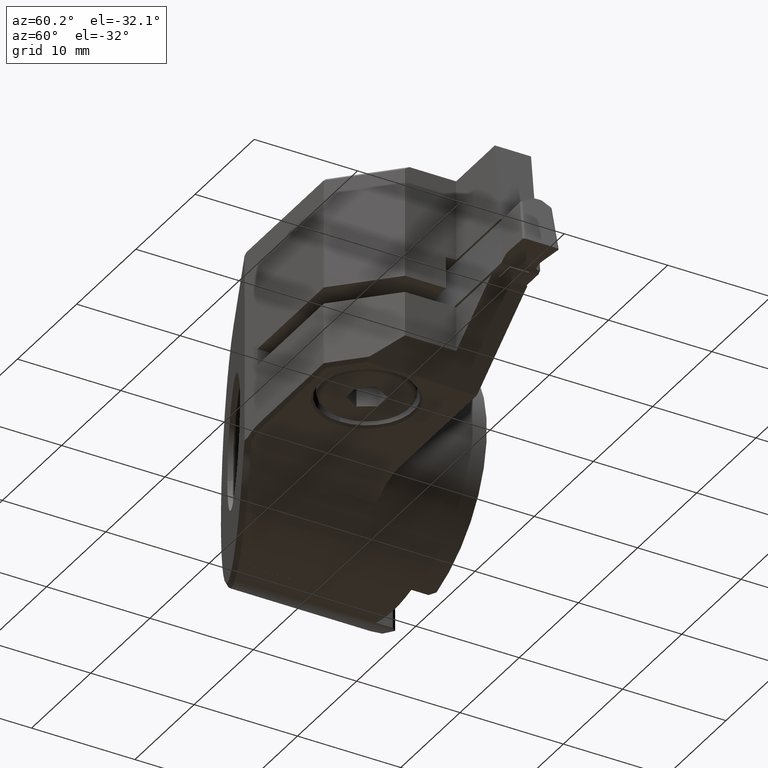
[diagram: clean part render]
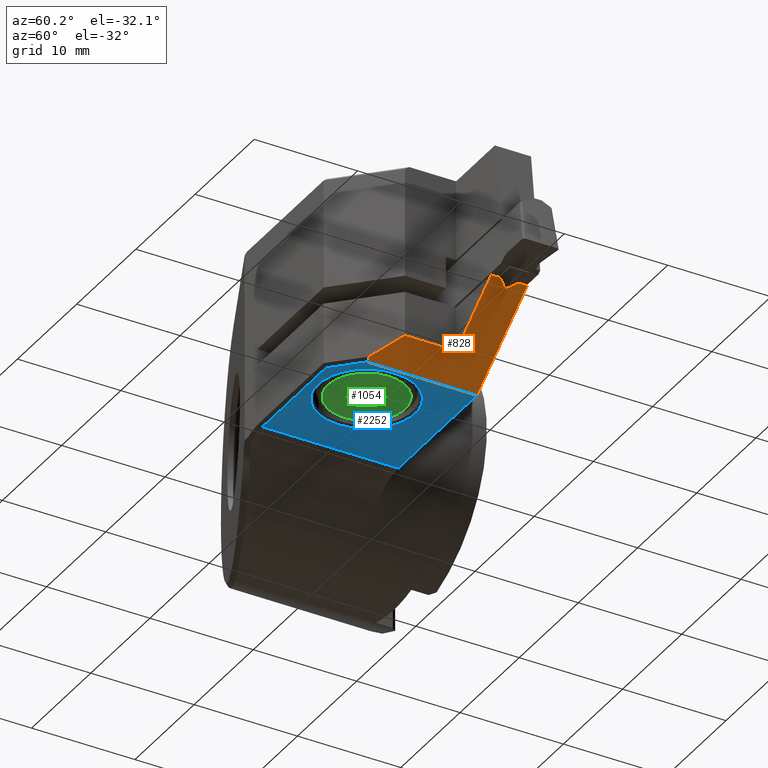
[diagram: same view with three faces highlighted in distinct colors, each labeled with its STEP entity id]
A machine part, auxiliary view with three faces highlighted in distinct colors.
Their STEP definitions:

[orange] entity #828 — the highlighted planar face has unit normal (0.5878, 0, -0.809).
#828=ADVANCED_FACE('NONE',(#2376),#2377,.T.);
#904=VERTEX_POINT('NONE',#2459);
#1000=VERTEX_POINT('NONE',#2563);
#1028=VERTEX_POINT('NONE',#2596);
#1036=VERTEX_POINT('NONE',#2604);
#1182=VERTEX_POINT('NONE',#2767);
#1300=VERTEX_POINT('NONE',#2892);
#1302=EDGE_CURVE('NONE',#1804,#1028,#2894,.T.);
#1366=EDGE_CURVE('NONE',#1182,#1036,#2966,.T.);
#1384=EDGE_CURVE('NONE',#1300,#1000,#2986,.F.);
#1472=EDGE_CURVE('NONE',#2098,#1028,#3086,.F.);
#1550=EDGE_CURVE('NONE',#1182,#1804,#3173,.T.);
#1562=EDGE_CURVE('NONE',#2274,#904,#3186,.T.);
#1692=EDGE_CURVE('NONE',#2098,#2274,#3322,.T.);
#1804=VERTEX_POINT('NONE',#3445);
#1892=VERTEX_POINT('NONE',#3541);
#2098=VERTEX_POINT('NONE',#3775);
#2154=EDGE_CURVE('NONE',#1036,#1300,#3834,.F.);
#2164=EDGE_CURVE('NONE',#1000,#1892,#3845,.T.);
#2194=EDGE_CURVE('NONE',#1892,#904,#3878,.F.);
#2274=VERTEX_POINT('NONE',#3968);
#2376=FACE_OUTER_BOUND('',#4094,.T.);
#2377=PLANE('',#4095);
#2459=CARTESIAN_POINT('',(34.1335679069214,-9.63397459621556,-0.5));
#2563=CARTESIAN_POINT('',(25.6,-8.75,-6.7));
#2596=CARTESIAN_POINT('',(34.1335679069214,-12.25,-0.5));
#2604=CARTESIAN_POINT('',(26.0129145761414,-19.3870854238586,-6.39999999999998));
#2767=CARTESIAN_POINT('',(28.2,-17.2,-4.81098942718608));
#2892=CARTESIAN_POINT('',(25.6,-19.375735931288,-6.7));
#2894=LINE('',#5078,#5079);
#2966=LINE('',#5185,#5186);
#2986=LINE('',#5211,#5212);
#3086=LINE('',#5345,#5346);
#3173=LINE('',#5529,#5530);
#3186=LINE('',#5544,#5545);
#3322=LINE('',#5801,#5802);
#3445=CARTESIAN_POINT('',(28.2,-12.25,-4.81098942718608));
#3541=CARTESIAN_POINT('',(34.1335679069214,-8.75,-0.5));
#3775=CARTESIAN_POINT('',(34.1335679069214,-11.3660254037844,-0.5));
#3834=LINE('',#6755,#6756);
#3845=LINE('',#6773,#6774);
#3878=LINE('',#6840,#6841);
#3968=CARTESIAN_POINT('',(33.4453769466858,-10.5,-1.0));
#4094=EDGE_LOOP('',(#7191,#7192,#7193,#7194,#7195,#7196,#7197,#7198,#7199,#7200));
#4095=AXIS2_PLACEMENT_3D('',#7201,#7202,#7203);
#5078=CARTESIAN_POINT('',(32.1907111622527,-12.25,-1.91156805082387));
#5079=VECTOR('',#7736,1.0);
#5185=CARTESIAN_POINT('',(29.6230449243907,-15.7769550756093,-3.77708677035407));
#5186=VECTOR('',#7827,1.0);
#5211=CARTESIAN_POINT('',(25.6,-11.1,-6.7));
#5212=VECTOR('',#7838,1.0);
#5345=CARTESIAN_POINT('',(34.1335679069214,-22.2,-0.5));
#5346=VECTOR('',#7950,1.0);
#5529=CARTESIAN_POINT('',(28.2,-22.725,-4.81098942718608));
#5530=VECTOR('',#8045,1.0);
#5544=CARTESIAN_POINT('',(25.2713376822733,-20.7862810811832,-6.93878715118129));
#5545=VECTOR('',#8056,1.0);
#5801=CARTESIAN_POINT('',(30.2368335565123,-6.46234149300123,-3.33114322591153));
#5802=VECTOR('',#8142,0.999999999999999);
#6755=CARTESIAN_POINT('',(33.1429410670195,-19.5830634477937,-1.21973252857222));
#6756=VECTOR('',#8722,1.0);
#6773=CARTESIAN_POINT('',(25.8153109007946,-8.75,-6.54356747382955));
#6774=VECTOR('',#8736,1.0);
#6840=CARTESIAN_POINT('',(34.1335679069214,-22.2,-0.5));
#6841=VECTOR('',#8769,1.0);
#7191=ORIENTED_EDGE('',*,*,#1366,.T.);
#7192=ORIENTED_EDGE('',*,*,#2154,.T.);
#7193=ORIENTED_EDGE('',*,*,#1384,.T.);
#7194=ORIENTED_EDGE('',*,*,#2164,.T.);
#7195=ORIENTED_EDGE('',*,*,#2194,.T.);
#7196=ORIENTED_EDGE('',*,*,#1562,.F.);
#7197=ORIENTED_EDGE('',*,*,#1692,.F.);
#7198=ORIENTED_EDGE('',*,*,#1472,.T.);
#7199=ORIENTED_EDGE('',*,*,#1302,.F.);
#7200=ORIENTED_EDGE('',*,*,#1550,.F.);
#7201=CARTESIAN_POINT('',(39.6,-22.2,3.47159539207493));
#7202=DIRECTION('',(0.587785252292469,0.0,-0.809016994374951));
#7203=DIRECTION('',(0.0,1.0,0.0));
#7736=DIRECTION('',(0.809016994374951,1.69086840073063E-016,0.587785252292469));
#7827=DIRECTION('',(-0.628960169645096,-0.628960169645095,-0.456966311668623));
#7838=DIRECTION('',(2.45082762162414E-032,-1.0,1.78063049592015E-032));
#7950=DIRECTION('',(0.0,1.0,0.0));
#8045=DIRECTION('',(0.0,1.0,0.0));
#8056=DIRECTION('',(0.566915270681804,0.713411036430494,0.411888053925997));
#8142=DIRECTION('',(-0.566915270681804,0.713411036430494,-0.411888053925997));
#8722=DIRECTION('',(0.80881704761348,-0.0222313853839278,0.587639982466923));
#8736=DIRECTION('',(0.809016994374951,0.0,0.587785252292469));
#8769=DIRECTION('',(0.0,1.0,0.0));

[blue] entity #2252 — the highlighted planar face has unit normal (0, -0, -1).
#860=EDGE_CURVE('NONE',#2126,#2094,#2410,.F.);
#942=EDGE_CURVE('NONE',#1000,#1420,#2498,.T.);
#1000=VERTEX_POINT('NONE',#2563);
#1166=VERTEX_POINT('NONE',#2748);
#1174=VERTEX_POINT('NONE',#2758);
#1300=VERTEX_POINT('NONE',#2892);
#1338=EDGE_CURVE('NONE',#1174,#1166,#2934,.F.);
#1384=EDGE_CURVE('NONE',#1300,#1000,#2986,.F.);
#1420=VERTEX_POINT('NONE',#3027);
#1576=EDGE_CURVE('NONE',#1300,#2126,#3200,.F.);
#1666=EDGE_CURVE('NONE',#1166,#1174,#3295,.T.);
#2094=VERTEX_POINT('NONE',#3771);
#2126=VERTEX_POINT('NONE',#3805);
#2146=EDGE_CURVE('NONE',#2094,#1420,#3826,.F.);
#2252=ADVANCED_FACE('NONE',(#3942,#3943),#3944,.T.);
#2410=LINE('',#4195,#4196);
#2498=LINE('',#4387,#4388);
#2563=CARTESIAN_POINT('',(25.6,-8.75,-6.7));
#2748=CARTESIAN_POINT('',(25.2,-16.5,-6.7));
#2758=CARTESIAN_POINT('',(15.8,-16.5,-6.7));
#2892=CARTESIAN_POINT('',(25.6,-19.375735931288,-6.7));
#2934=CIRCLE('',#5143,4.70000000000001);
#2986=LINE('',#5211,#5212);
#3027=CARTESIAN_POINT('',(12.333288288206,-8.75,-6.7));
#3200=LINE('',#5568,#5569);
#3295=CIRCLE('',#5762,4.70000000000001);
#3771=CARTESIAN_POINT('',(12.333288288206,-21.9029999999036,-6.7));
#3805=CARTESIAN_POINT('',(23.0727359313844,-21.9029999999036,-6.7));
#3826=LINE('',#6740,#6741);
#3942=FACE_OUTER_BOUND('',#6970,.T.);
#3943=FACE_BOUND('',#6971,.T.);
#3944=PLANE('',#6972);
#4195=CARTESIAN_POINT('',(22.6,-21.9029999999036,-6.7));
#4196=VECTOR('',#7222,1.0);
#4387=CARTESIAN_POINT('',(4.75,-8.75,-6.7));
#4388=VECTOR('',#7296,1.0);
#5143=AXIS2_PLACEMENT_3D('',#7777,#7778,#7779);
#5211=CARTESIAN_POINT('',(25.6,-11.1,-6.7));
#5212=VECTOR('',#7838,1.0);
#5568=CARTESIAN_POINT('',(27.237867965644,-17.737867965644,-6.7));
#5569=VECTOR('',#8061,1.0);
#5762=AXIS2_PLACEMENT_3D('',#8124,#8125,#8126);
#6740=CARTESIAN_POINT('',(12.333288288206,-11.17,-6.7));
#6741=VECTOR('',#8717,1.0);
#6970=EDGE_LOOP('',(#8848,#8849,#8850,#8851,#8852));
#6971=EDGE_LOOP('',(#8853,#8854));
#6972=AXIS2_PLACEMENT_3D('',#8855,#8856,#8857);
#7222=DIRECTION('',(1.0,-1.29498993662696E-017,2.60666795216285E-048));
#7296=DIRECTION('',(-1.0,0.0,-2.37607809485609E-048));
#7777=CARTESIAN_POINT('',(20.5,-16.5,-6.7));
#7778=DIRECTION('',(2.37607809485609E-048,-1.78063049592015E-032,-1.0));
#7779=DIRECTION('',(1.0,4.2309171163886E-080,2.37607809485609E-048));
#7838=DIRECTION('',(2.45082762162414E-032,-1.0,1.78063049592015E-032));
#8061=DIRECTION('',(0.707106781186548,0.707106781186547,-1.2590958984527E-032));
#8124=CARTESIAN_POINT('',(20.5,-16.5,-6.7));
#8125=DIRECTION('',(-2.37607809485609E-048,1.78063049592015E-032,1.0));
#8126=DIRECTION('',(1.0,4.2309171163886E-080,2.37607809485609E-048));
#8717=DIRECTION('',(0.0,-1.0,0.0));
#8848=ORIENTED_EDGE('',*,*,#1384,.F.);
#8849=ORIENTED_EDGE('',*,*,#1576,.T.);
#8850=ORIENTED_EDGE('',*,*,#860,.T.);
#8851=ORIENTED_EDGE('',*,*,#2146,.T.);
#8852=ORIENTED_EDGE('',*,*,#942,.F.);
#8853=ORIENTED_EDGE('',*,*,#1666,.T.);
#8854=ORIENTED_EDGE('',*,*,#1338,.T.);
#8855=CARTESIAN_POINT('',(9.5,0.0,-6.7));
#8856=DIRECTION('',(2.37607809485609E-048,-1.78063049592015E-032,-1.0));
#8857=DIRECTION('',(1.0,1.33440267382831E-016,0.0));

[green] entity #1054 — the highlighted planar face has unit normal (0, 0, 1).
#894=EDGE_CURVE('NONE',#1438,#1506,#2448,.T.);
#960=EDGE_CURVE('NONE',#1244,#1438,#2518,.T.);
#1054=ADVANCED_FACE('NONE',(#2624,#2625),#2626,.F.);
#1226=EDGE_CURVE('NONE',#2026,#1992,#2814,.T.);
#1244=VERTEX_POINT('NONE',#2834);
#1438=VERTEX_POINT('NONE',#3048);
#1464=EDGE_CURVE('NONE',#1506,#1712,#3077,.T.);
#1506=VERTEX_POINT('NONE',#3125);
#1514=EDGE_CURVE('NONE',#2244,#2058,#3134,.T.);
#1584=EDGE_CURVE('NONE',#2058,#1244,#3208,.T.);
#1680=EDGE_CURVE('NONE',#1712,#2244,#3309,.T.);
#1712=VERTEX_POINT('NONE',#3343);
#1966=EDGE_CURVE('NONE',#1992,#2026,#3625,.T.);
#1992=VERTEX_POINT('NONE',#3652);
#2026=VERTEX_POINT('NONE',#3692);
#2058=VERTEX_POINT('NONE',#3731);
#2244=VERTEX_POINT('NONE',#3933);
#2448=LINE('',#4251,#4252);
#2518=LINE('',#4416,#4417);
#2624=FACE_OUTER_BOUND('',#4586,.T.);
#2625=FACE_BOUND('',#4587,.T.);
#2626=PLANE('',#4588);
#2814=CIRCLE('',#4964,3.75);
#2834=CARTESIAN_POINT('',(19.6339745962155,-14.9999999999999,-6.49999999999998));
#3048=CARTESIAN_POINT('',(18.7679491924311,-16.4999999999999,-6.49999999999998));
#3077=LINE('',#5331,#5332);
#3125=CARTESIAN_POINT('',(19.6339745962155,-17.9999999999998,-6.49999999999998));
#3134=LINE('',#5436,#5437);
#3208=LINE('',#5580,#5581);
#3309=LINE('',#5782,#5783);
#3343=CARTESIAN_POINT('',(21.3660254037844,-17.9999999999998,-6.49999999999998));
#3625=CIRCLE('',#6384,3.75);
#3652=CARTESIAN_POINT('',(16.7499999999999,-16.4999999999999,-6.49999999999998));
#3692=CARTESIAN_POINT('',(24.2499999999999,-16.4999999999999,-6.49999999999998));
#3731=CARTESIAN_POINT('',(21.3660254037844,-14.9999999999999,-6.49999999999998));
#3933=CARTESIAN_POINT('',(22.2320508075688,-16.4999999999999,-6.49999999999998));
#4251=CARTESIAN_POINT('',(18.7679491924311,-16.4999999999999,-6.49999999999998));
#4252=VECTOR('',#7266,1000.0);
#4416=CARTESIAN_POINT('',(19.6339745962155,-14.9999999999999,-6.49999999999998));
#4417=VECTOR('',#7319,1000.0);
#4586=EDGE_LOOP('',(#7449,#7450));
#4587=EDGE_LOOP('',(#7451,#7452,#7453,#7454,#7455,#7456));
#4588=AXIS2_PLACEMENT_3D('',#7457,#7458,#7459);
#4964=AXIS2_PLACEMENT_3D('',#7666,#7667,#7668);
#5331=CARTESIAN_POINT('',(19.6339745962155,-17.9999999999998,-6.49999999999998));
#5332=VECTOR('',#7937,1000.0);
#5436=CARTESIAN_POINT('',(22.2320508075688,-16.4999999999999,-6.49999999999998));
#5437=VECTOR('',#8011,1000.0);
#5580=CARTESIAN_POINT('',(21.3660254037844,-14.9999999999999,-6.49999999999998));
#5581=VECTOR('',#8063,1000.0);
#5782=CARTESIAN_POINT('',(21.3660254037844,-17.9999999999998,-6.49999999999998));
#5783=VECTOR('',#8132,1000.0);
#6384=AXIS2_PLACEMENT_3D('',#8479,#8480,#8481);
#7266=DIRECTION('',(0.5,-0.866025403784439,-7.78482281075736E-017));
#7319=DIRECTION('',(-0.500000000000001,-0.866025403784438,8.70948790829713E-017));
#7449=ORIENTED_EDGE('',*,*,#1226,.T.);
#7450=ORIENTED_EDGE('',*,*,#1966,.T.);
#7451=ORIENTED_EDGE('',*,*,#894,.T.);
#7452=ORIENTED_EDGE('',*,*,#1464,.T.);
#7453=ORIENTED_EDGE('',*,*,#1680,.T.);
#7454=ORIENTED_EDGE('',*,*,#1514,.T.);
#7455=ORIENTED_EDGE('',*,*,#1584,.T.);
#7456=ORIENTED_EDGE('',*,*,#960,.T.);
#7457=CARTESIAN_POINT('',(20.4999999999999,-16.4999999999999,-6.49999999999998));
#7458=DIRECTION('',(1.64943107190545E-016,5.33855642974837E-018,1.0));
#7459=DIRECTION('',(4.9960036108132E-016,1.0,-5.33855642974845E-018));
#7666=CARTESIAN_POINT('',(20.4999999999999,-16.4999999999999,-6.49999999999998));
#7667=DIRECTION('',(-1.64943107190545E-016,-5.33855642974837E-018,-1.0));
#7668=DIRECTION('',(1.0,-4.9960036108132E-016,-1.64943107190545E-016));
#7937=DIRECTION('',(1.0,-4.9960036108132E-016,-1.64943107190545E-016));
#8011=DIRECTION('',(-0.5,0.866025403784439,7.78482281075736E-017));
#8063=DIRECTION('',(-1.0,7.21644966006352E-016,1.64943107190545E-016));
#8132=DIRECTION('',(0.5,0.866025403784438,-8.70948790829713E-017));
#8479=CARTESIAN_POINT('',(20.4999999999999,-16.4999999999999,-6.49999999999998));
#8480=DIRECTION('',(-1.64943107190545E-016,-5.33855642974837E-018,-1.0));
#8481=DIRECTION('',(1.0,-4.9960036108132E-016,-1.64943107190545E-016));